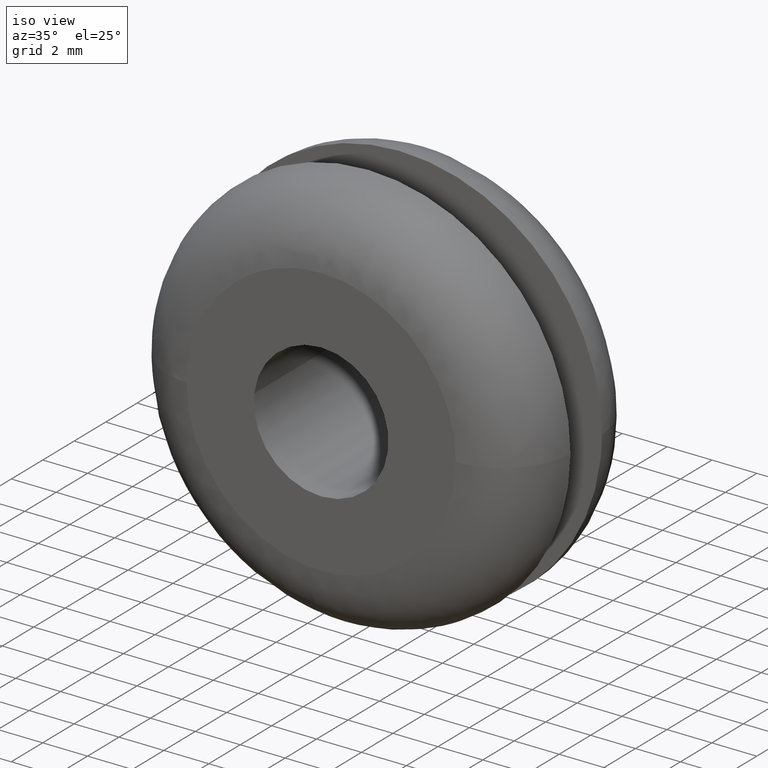
[diagram: clean part render]
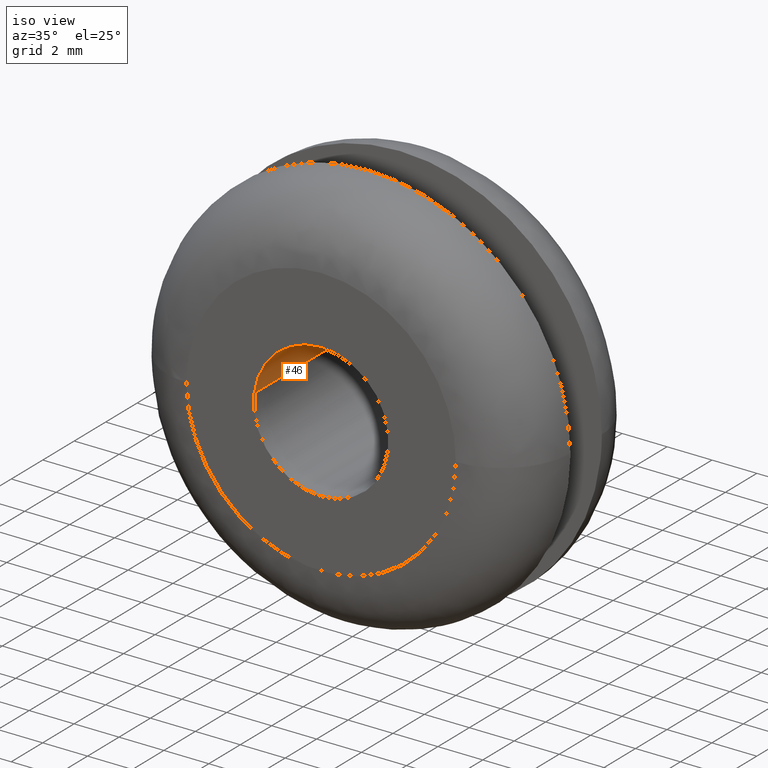
[diagram: same view with one face highlighted and labeled with its STEP entity id]
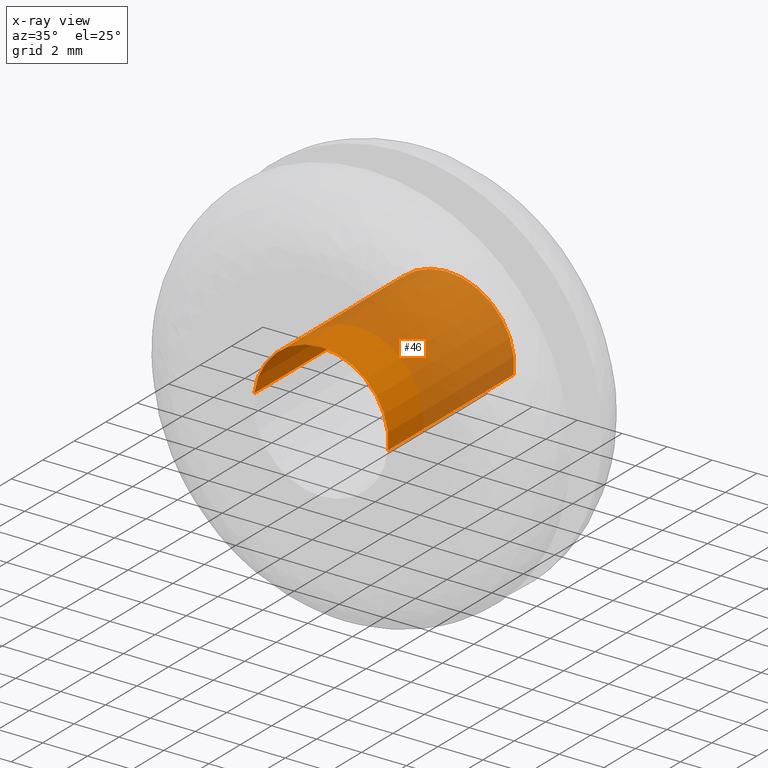
[diagram: x-ray of the same camera — body ghosted, the highlighted face saturated]
A machine part, iso view. The second image highlights one B-rep face of the part: STEP entity #46.
The next image is the same camera in x-ray: the body ghosted, the highlighted face saturated — about 68% of this face is hidden behind the body in this view.
In plain terms, the highlighted cylindrical surface (partial cylindrical patch) has radius 3 mm, axis along (0, 1, 0).
Its self-contained STEP definition (entity closure, byte-faithful):
#46=ADVANCED_FACE('',(#117),#116,.F.);
#116=CYLINDRICAL_SURFACE('',#213,3.00000000000E+000);
#117=FACE_OUTER_BOUND('',#214,.T.);
#210=CARTESIAN_POINT('',(5.42003842924E-015,8.20000000000E+000,4.48206038936E-014));
#211=DIRECTION('',(1.12728726745E-015,1.00000000000E+000,1.07378739382E-014));
#212=DIRECTION('',(-9.93009526364E-001,-1.48029736617E-016,1.18034234657E-001));
#213=AXIS2_PLACEMENT_3D('',#210,#211,#212);
#214=EDGE_LOOP('',(#363,#364,#365,#366));
#363=ORIENTED_EDGE('',*,*,#425,.T.);
#364=ORIENTED_EDGE('',*,*,#429,.T.);
#365=ORIENTED_EDGE('',*,*,#410,.F.);
#366=ORIENTED_EDGE('',*,*,#430,.F.);
#410=EDGE_CURVE('',#513,#520,#521,.T.);
#425=EDGE_CURVE('',#625,#617,#626,.T.);
#429=EDGE_CURVE('',#617,#520,#650,.T.);
#430=EDGE_CURVE('',#625,#513,#656,.T.);
#513=VERTEX_POINT('',#742);
#520=VERTEX_POINT('',#747);
#521=CIRCLE('',#751,3.00000000000E+000);
#617=VERTEX_POINT('',#816);
#625=VERTEX_POINT('',#822);
#626=CIRCLE('',#826,2.99999999999E+000);
#650=(BOUNDED_CURVE() B_SPLINE_CURVE(1,(#835,#836),.UNSPECIFIED.,.F.,.F.) B_SPLINE_CURVE_WITH_KNOTS((2,2),(8.33333366442E-002,9.16666667899E-001),.UNSPECIFIED.) CURVE() GEOMETRIC_REPRESENTATION_ITEM() RATIONAL_B_SPLINE_CURVE((1.00000000000E+000,1.00000000000E+000)) REPRESENTATION_ITEM('') );
#656=(BOUNDED_CURVE() B_SPLINE_CURVE(1,(#837,#838),.UNSPECIFIED.,.F.,.F.) B_SPLINE_CURVE_WITH_KNOTS((2,2),(8.33333333333E-002,9.16666666667E-001),.UNSPECIFIED.) CURVE() GEOMETRIC_REPRESENTATION_ITEM() RATIONAL_B_SPLINE_CURVE((7.50000000000E-001,7.50000000000E-001)) REPRESENTATION_ITEM('') );
#742=CARTESIAN_POINT('',(2.97896733272E+000,8.00000000000E+000,-3.54617583606E-001));
#747=CARTESIAN_POINT('',(-2.97902870858E+000,8.00000000000E+000,3.54101614557E-001));
#748=CARTESIAN_POINT('',(8.88178419700E-016,8.00000000000E+000,6.66133814775E-016));
#749=DIRECTION('',(1.21078778989E-015,-1.00000000000E+000,1.01862295564E-014));
#750=DIRECTION('',(-4.71844785466E-016,-1.01862295564E-014,-1.00000000000E+000));
#751=AXIS2_PLACEMENT_3D('',#748,#749,#750);
#816=CARTESIAN_POINT('',(-2.97902870857E+000,-8.51761570636E-016,3.54101614556E-001));
#822=CARTESIAN_POINT('',(2.97896733271E+000,-7.01894261053E-016,-3.54617583606E-001));
#823=CARTESIAN_POINT('',(3.50297568730E-012,-7.76608020262E-016,7.70561392471E-012));
#824=DIRECTION('',(1.24778790738E-016,-1.00000000000E+000,8.37516795386E-016));
#825=DIRECTION('',(-1.16751053270E-012,-8.37516795386E-016,-1.00000000000E+000));
#826=AXIS2_PLACEMENT_3D('',#823,#824,#825);
#835=CARTESIAN_POINT('',(-2.97902857909E+000,3.17843023012E-008,3.54102703970E-001));
#836=CARTESIAN_POINT('',(-2.97902857909E+000,8.00000001183E+000,3.54102703970E-001));
#837=CARTESIAN_POINT('',(2.97902857909E+000,-4.44089209850E-016,-3.54102703970E-001));
#838=CARTESIAN_POINT('',(2.97902857909E+000,8.00000000000E+000,-3.54102703970E-001));